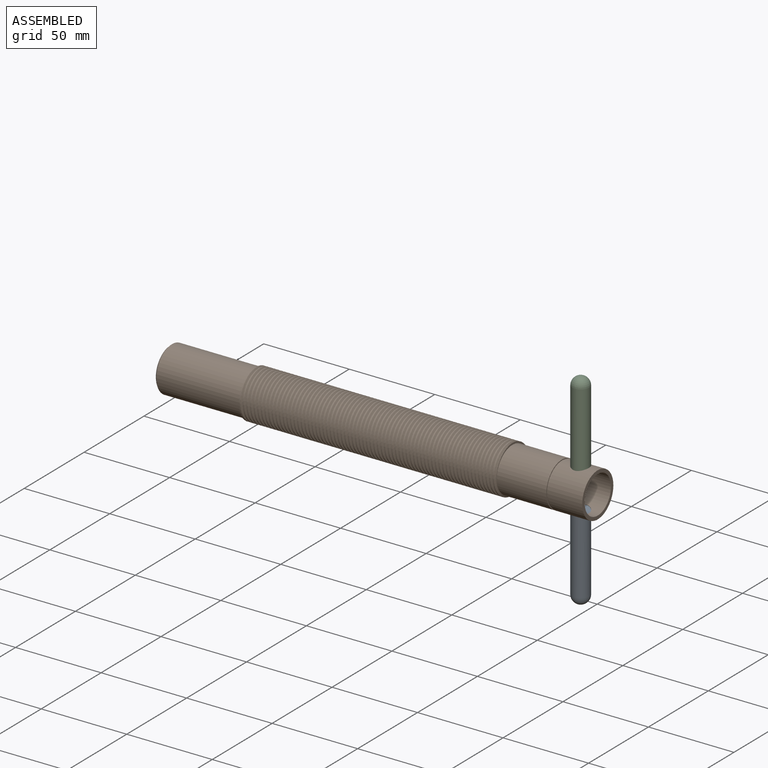
[diagram: assembled view]
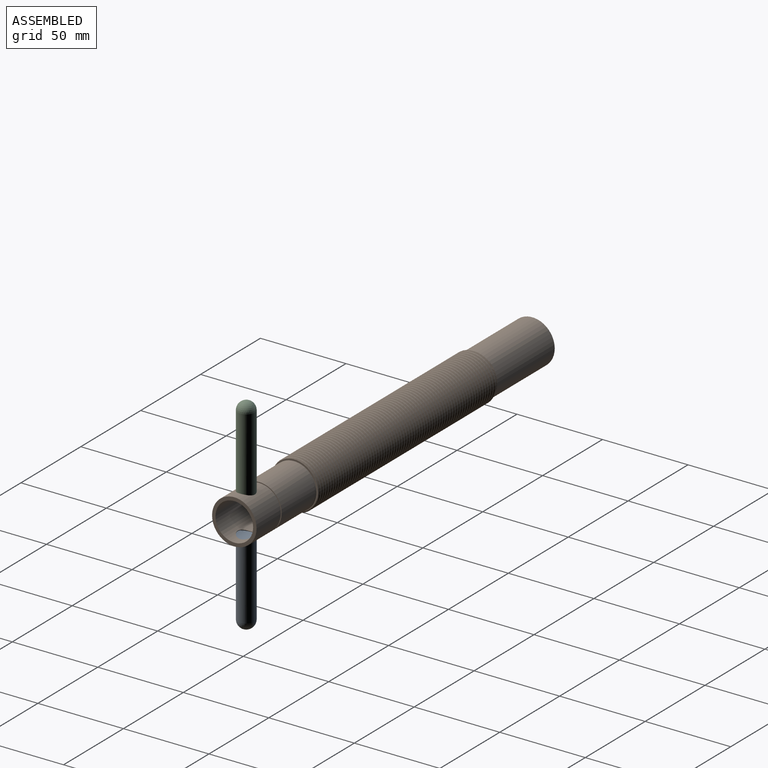
[diagram: assembled view, second angle]
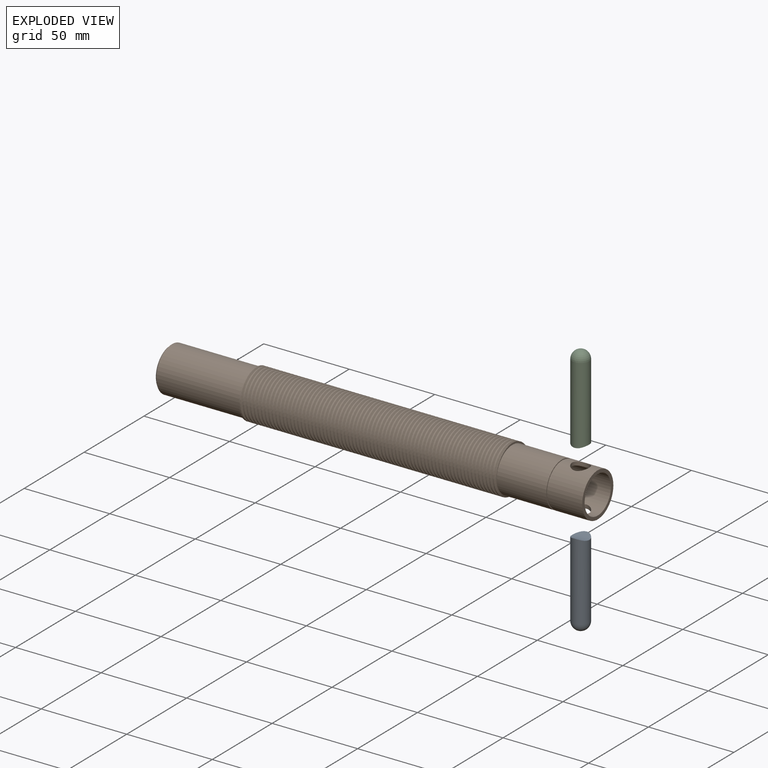
[diagram: exploded view]
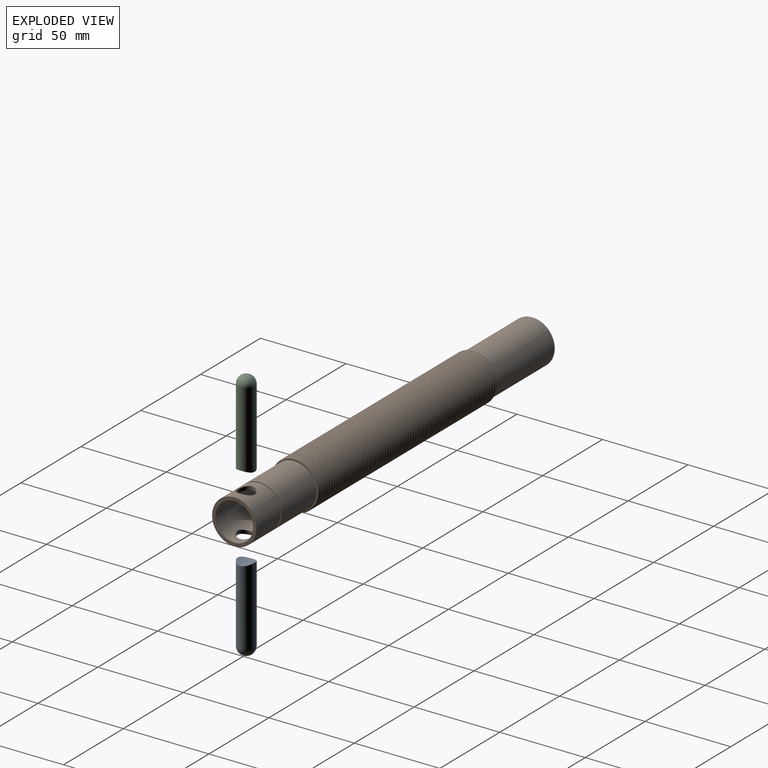
[diagram: exploded view, second angle]
ASSEMBLY  parts=3 mates=2
PART A: 3 faces, bbox 50.2x10x10 mm
  f0: sphere r=5mm, area 157.1mm2, adj f1
  f1: cylinder r=5mm len=45.2mm, axis (-1,0,0), area 1400.9mm2, adj f0,f2
  f2: cylinder r=11mm len=10mm, axis (0,-1,0), area 80.8mm2, adj f1
PART B: 20 faces, bbox 32.6x28.3x250 mm
  f0: cylinder r=5mm len=10mm, axis (0,1,0), area 81.4mm2, adj f2,f7
  f1: cylinder r=5mm len=10mm, axis (0,1,0), area 81.4mm2, adj f2,f7
  f2: cylinder r=13mm len=26mm, axis (0,0,1), area 1473.5mm2, adj f0,f1,f13,f14
  f3: cylinder r=12.5mm len=25mm, axis (0,0,1), area 78.5mm2, adj f12,f13
  f4: cylinder r=14mm len=150mm, axis (0,0,1), area 3764.1mm2, adj f10,f11,f15,f17,f19
  f5: cylinder r=13mm len=49mm, axis (0,0,1), area 4001.8mm2, adj f6,f10,f15,f19
  f6: cone r=12mm half-angle=45deg, axis (0,0,1), area 111.1mm2, adj f5,f9
  f7: cylinder r=11mm len=250mm, axis (0,0,1), area 17117.3mm2, adj f0,f1,f9,f14
  f8: cylinder r=13mm len=29mm, axis (0,0,1), area 2354.9mm2, adj f11,f12,f16,f17,f19
  f9: plane 24x24mm, normal (0,0,-1), area 72.3mm2, adj f6,f7
  f10: plane 28x27.63mm, normal (0,0,-1), area 65.9mm2, adj f4,f5,f15,f19
  f11: plane 27.22x27.15mm, normal (0,0,1), area 47mm2, adj f4,f8,f17,f19
  f12: plane 26x26mm, normal (0,0,1), area 40.1mm2, adj f3,f8
  f13: plane 26x26mm, normal (0,0,-1), area 40.1mm2, adj f2,f3
  f14: plane 26x26mm, normal (0,0,1), area 150.8mm2, adj f2,f7
  f15: plane 1.08x0.94mm, normal (-1,0,0.02), area 0.5mm2, adj f4,f5,f10,f17,f18,f19
  f16: plane 0.36x0.08mm, normal (-0.53,0.85,-0.02), area 0mm2, adj f8,f17,f18,f19
  f17: bspline ~152.04x32.6mm, area 7477.6mm2, adj f4,f8,f11,f15,f16,f18
  f18: cylinder r=12.92mm len=151.26mm, axis (0,0,1), area -1072.1mm2, adj f15,f16,f17,f19
  f19: bspline ~152.04x32.6mm, area 7456.9mm2, adj f4,f5,f8,f10,f11,f15,f16,f18
PART C: 3 faces, bbox 50.2x10x10 mm
  f0: cylinder r=5mm len=45.2mm, axis (-1,0,0), area 1400.9mm2, adj f1,f2
  f1: sphere r=5mm, area 157.1mm2, adj f0
  f2: cylinder r=11mm len=10mm, axis (0,-1,0), area 80.7mm2, adj f0
PLACE A rot(axis=(0.58,-0.58,0.58),120deg) t=(-60.33,-70.4,78.89)mm
PLACE B rot(axis=(-0.58,0.58,-0.58),120deg) t=(-175.33,-70.4,79.14)mm
PLACE C rot(axis=(0.58,-0.58,0.58),120deg) t=(-60.33,-70.4,79.4)mm
MATE fastened A.f1 <-> B.f0  axis (0,0,-1) through (-60.33,-70.4,69.37)mm
MATE fastened C.f0 <-> B.f0  axis (0,0,-1) through (-60.33,-70.4,88.92)mm
